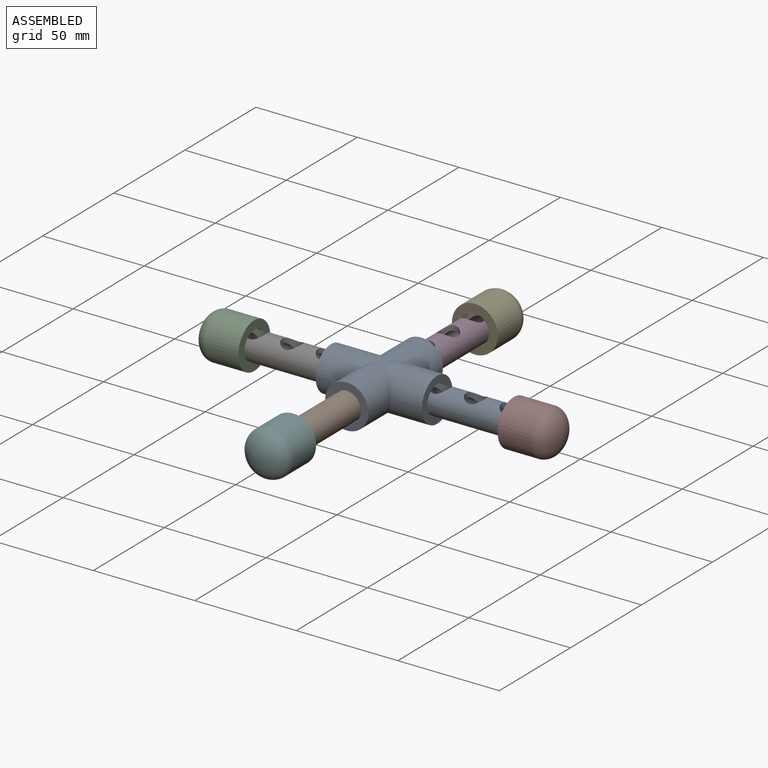
[diagram: assembled view]
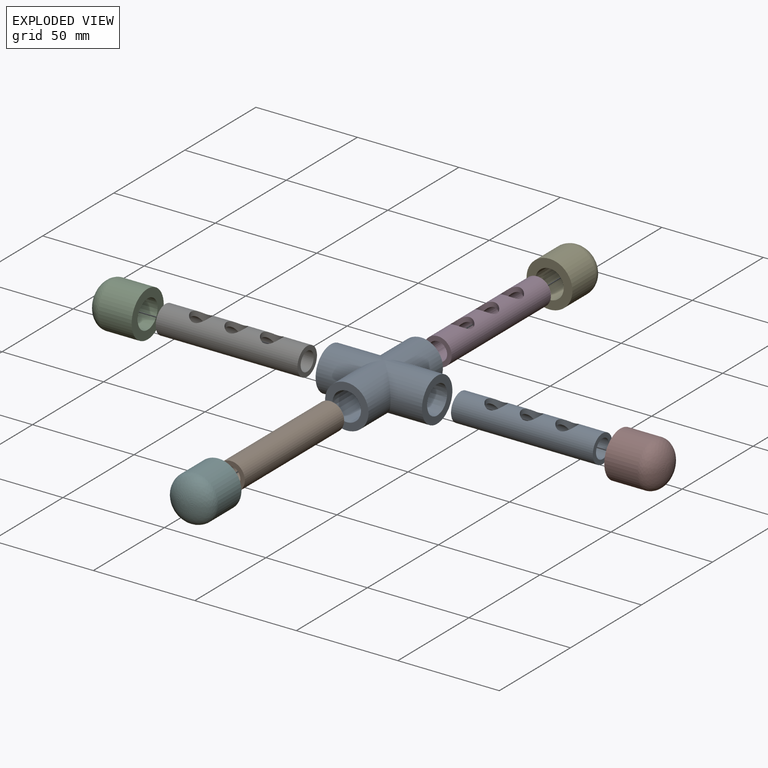
[diagram: exploded view]
GUIDED TOUR — MATED ASSEMBLY (Onshape document 892122c029d7853bbd5c459d, AutoMate assembly 892122c029d7853bbd5c459d_22f5e2d6d3beb525846c4b32_961544b801628863d71b3b25_default)

This assembly has 9 components, labeled P0..P8 below (a component is one placed occurrence of a part; the same part can appear more than once), held together by 14 mates. A mate is a constraint between two components; its type names the relative motion it leaves free:
  PLANAR — leaves sliding in the plane through the listed point (normal = the listed direction) and rotation about that normal free,
  SLIDER — leaves translation along the listed axis free.
Axis/direction vectors are unit vectors and 'through' points are millimeter coordinates, both in the assembly's world frame.

MATES
  1. SLIDER "Slider 2": P7 <-> P0, axis (-1.000, 0.000, 0.000) through (-15.50, -13.28, 13.67) mm
  2. SLIDER "Slider 2": P5 <-> P1, axis (0.000, 1.000, 0.000) through (-87.54, -85.32, 13.67) mm
  3. PLANAR "Planar 3": P8 <-> P0, direction (1.000, 0.000, 0.000) through (-77.22, -13.28, 13.67) mm
  4. SLIDER "Slider 2": P4 <-> P3, axis (0.000, -1.000, 0.000) through (-87.54, 58.76, 13.67) mm
  5. SLIDER "Slider 3": P3 <-> P8, axis (0.000, -1.000, 0.000) through (-87.54, 31.97, 13.67) mm
  6. PLANAR "Planar 7": P0 <-> P7, direction (1.000, 0.000, 0.000) through (-7.37, -13.28, 13.67) mm
  7. PLANAR "Planar 5": P8 <-> P3, direction (0.000, 1.000, 0.000) through (-87.54, -2.96, 13.67) mm
  8. PLANAR "Planar 2": P3 <-> P4, direction (0.000, 1.000, 0.000) through (-87.54, 66.89, 13.67) mm
  9. SLIDER "Slider 1": P1 <-> P8, axis (0.000, 1.000, 0.000) through (-87.54, -58.52, 13.67) mm
  10. PLANAR "Planar 2": P1 <-> P5, direction (0.000, -1.000, 0.000) through (-87.54, -93.45, 13.67) mm
  11. PLANAR "Planar 2": P6 <-> P2, direction (-1.000, 0.000, 0.000) through (-167.71, -13.28, 13.67) mm
  12. PLANAR "Planar 4": P8 <-> P6, direction (-1.000, 0.000, 0.000) through (-97.86, -13.28, 13.67) mm
  13. PLANAR "Planar 1": P8 <-> P1, direction (0.000, -1.000, 0.000) through (-87.54, -23.60, 13.67) mm
  14. SLIDER "Slider 2": P2 <-> P6, axis (1.000, 0.000, 0.000) through (-159.58, -13.28, 13.67) mm

ASSEMBLY ORDER
  1. P8 — the base component [order heuristic]
  2. P0 [order heuristic]
  3. P1 [order heuristic]
  4. P3 [order heuristic]
  5. P6 [order heuristic]
  6. P2 [order heuristic]
  7. P4 [order heuristic]
  8. P5 [order heuristic]
  9. P7 [order heuristic]
Order-tag legend:
  [order heuristic] — this assembly is geometrically interlocked (no collision-free removal order exists), so components are listed in mate-graph order; insertion feasibility is not verified.

Of the 9 components, 4 carry the full construction recipe — the FeatureScript program that regenerates the part's solid from scratch; the rest are supplied as boundary geometry only.
Each toured component is shown spotlighted twice — in the assembled view, then in the exploded view, where a leader line traces a displaced component back to its assembled socket (saturated green if recipe-attached, orange if geometry-only; every other component desaturated gray) — followed by its recipe or geometry summary and the mates that hold it.
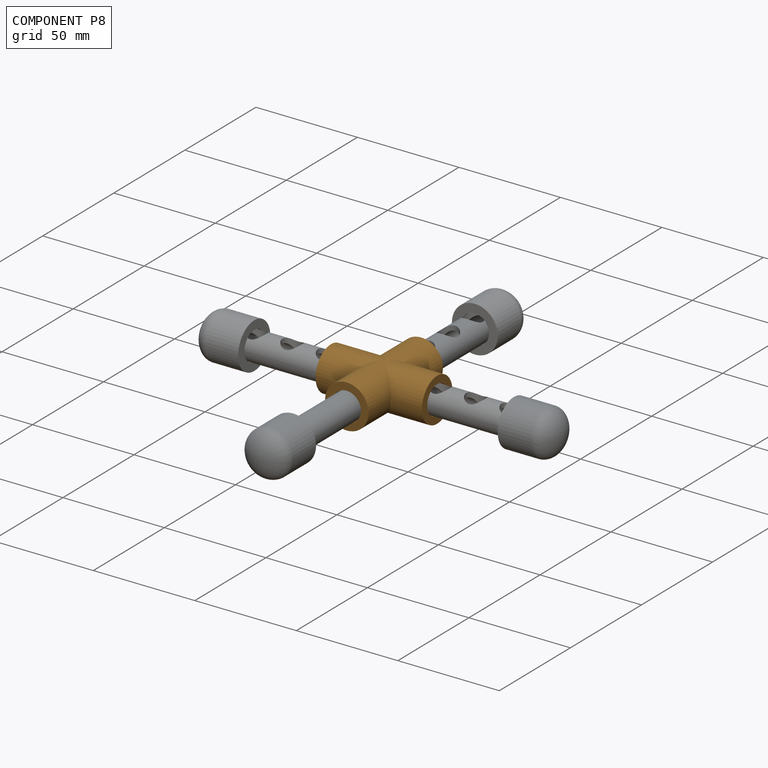
[diagram: component P8 — assembled]
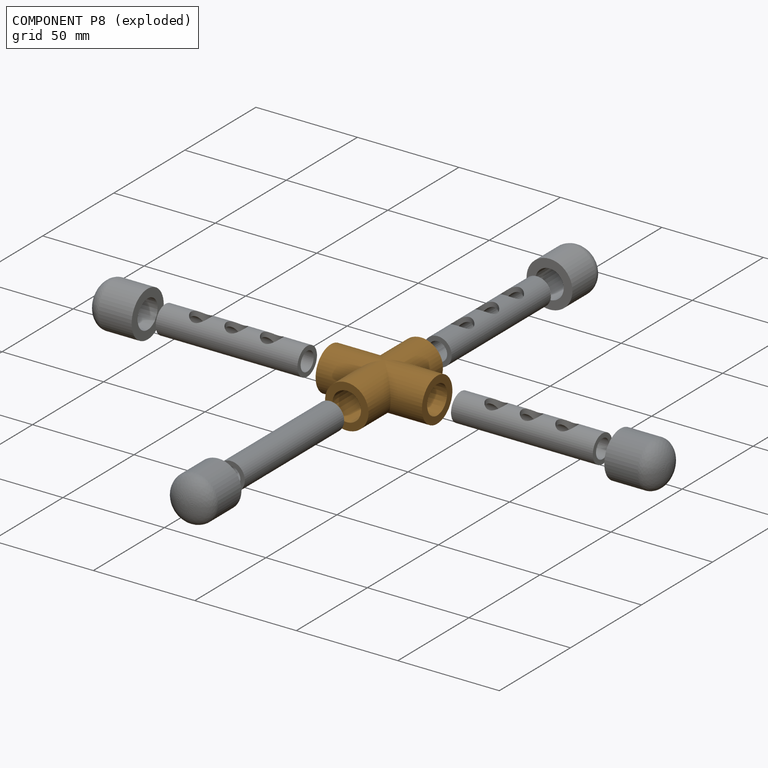
[diagram: component P8 — exploded]
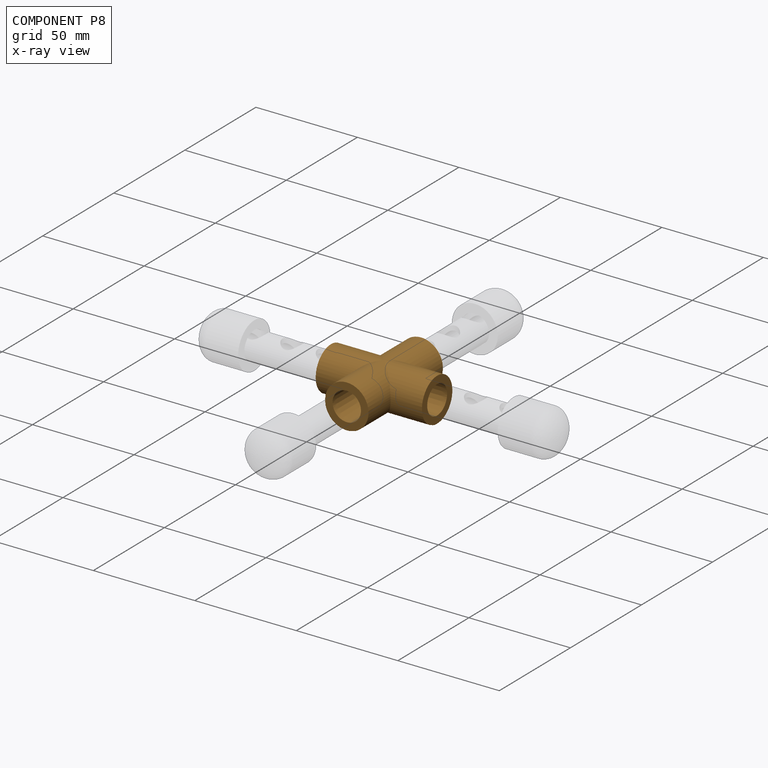
[diagram: component P8 — x-ray view]
COMPONENT P8 — geometry summary (no construction recipe available for this part):
  bounding box: 52.4 x 52.4 x 21.4 mm
  B-rep topology: 1 solid, 20 faces, 72 edges
  volume: 20104 mm^3 (34% of its bounding box)
  symmetry: 2-fold rotationally symmetric about the x axis; 2-fold rotationally symmetric about the y axis; 4-fold rotationally symmetric about the z axis; mirror-symmetric across its x mid-plane, y mid-plane, z mid-plane
Held by: PLANAR mate "Planar 3" to P0; SLIDER mate "Slider 3" to P3; PLANAR mate "Planar 5" to P3; SLIDER mate "Slider 1" to P1; PLANAR mate "Planar 4" to P6; PLANAR mate "Planar 1" to P1.
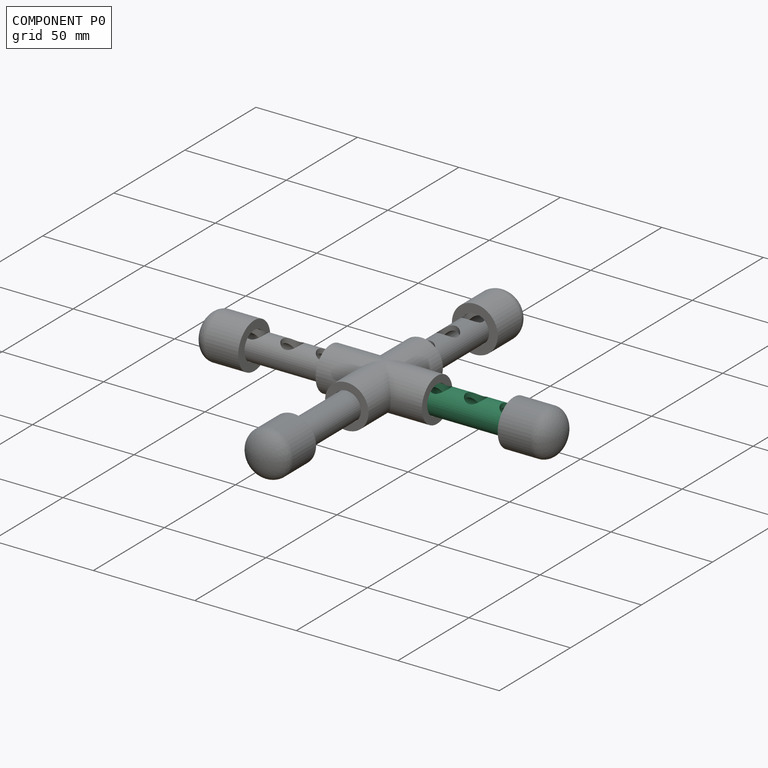
[diagram: component P0 — assembled]
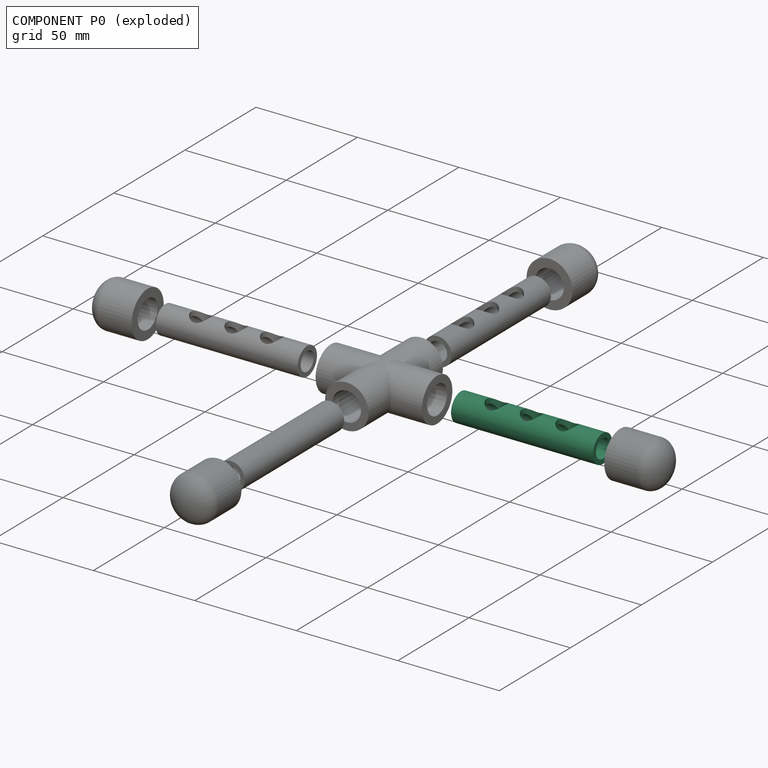
[diagram: component P0 — exploded]
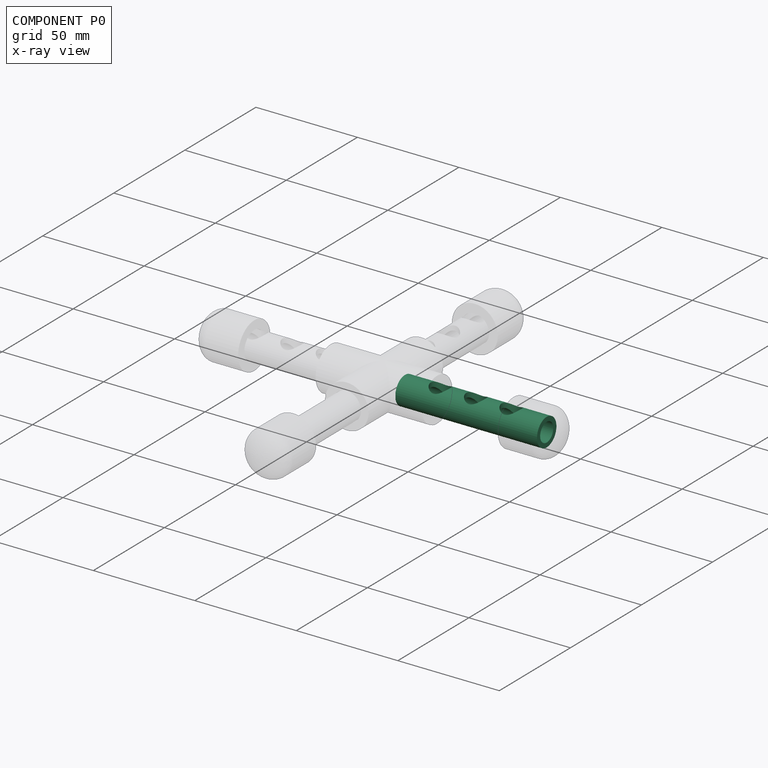
[diagram: component P0 — x-ray view]
COMPONENT P0 — recipe-attached (CADFS 00877808, mesh-verified: the recipe's output STEP matches this component's geometry to below the mesh-comparison resolution (tessellation chordal tolerance ~0.109 mm)).
Held by: SLIDER mate "Slider 2" to P7; PLANAR mate "Planar 3" to P8; PLANAR mate "Planar 7" to P7.
Construction recipe (FeatureScript — the CAD program that rebuilds this solid; sketch coordinates are in the units given by the * unit suffixes, e.g. mm):

FeatureScript 1511;
import(path : "onshape/std/geometry.fs", version : "1511.0");
import(path : "onshape/std/common.fs", version : "1511.0");
const mm = millimeter;
const VERTEX = EntityType.VERTEX;
const EDGE = EntityType.EDGE;
const FACE = EntityType.FACE;
const BODY = EntityType.BODY;
function v(x, y){return vector(x, y);}
function OD(order){return orderDisambiguation(order);}
function OSD(set){return originalSetDisambiguation(set);}
function TD(topology){return topologyDisambiguation(topology);}
function TDD(query){return trueDependencyDisambiguation(query);}
function sQuery(a, b, c) {return sketchEntityQuery(a, b, c);}

annotation { "Feature Type Name" : "Feature", "Feature Type Description" : "" }
export const myFeature = defineFeature(function(context is Context, id is Id, definition is map)
    precondition{}
    {
        {
            var Q0;
            Q0=qCreatedBy(makeId("Front.planeOp"),FACE);
            var sketch = newSketch(context, id + "F0", { "sketchPlane" : qUnion([Q0])});
            skCircle(sketch, "E0", {"center": v(0, 0) * mm, "radius": 6.86 * mm});
            skCircle(sketch, "E1", {"center": v(0, 0) * mm, "radius": 4.62 * mm});
            skSolve(sketch);
        }
        {
            var Q0;
            Q0=makeQuery(id+"F0.imprint","IMPRINT",FACE,{"disambiguationData":[TD([[makeQuery(id+"F0.imprint","IMPRINT",EDGE,{"derivedFrom":sQuery(id+"F0.wireOp",EDGE,"E0")}),1.0]])]});
            extrude(context, id + "F1", {"entities" : qUnion([Q0]), "depth" : 69.85 * mm, "offsetDistance" : 25.4 * mm});
        }
        {
            var Q0;
            Q0=qCreatedBy(makeId("Top.planeOp"),FACE);
            var sketch = newSketch(context, id + "F2", { "sketchPlane" : qUnion([Q0])});
            skCircle(sketch, "E2", {"center": v(0, -17.46) * mm, "radius": 4.76 * mm});
            skCircle(sketch, "E3", {"center": v(0, -34.93) * mm, "radius": 4.76 * mm});
            skCircle(sketch, "E4", {"center": v(0, -52.39) * mm, "radius": 4.76 * mm});
            skSolve(sketch);
        }
        {
            var Q0;
            Q0 = qSketchRegion(id + "F2", true);
            extrude(context, id + "F3", {"entities" : qUnion([Q0]), "operationType" : NewBodyOperationType.REMOVE, "oppositeDirection" : true, "depth" : 25.4 * mm, "offsetDistance" : 25.4 * mm});
        }
    });
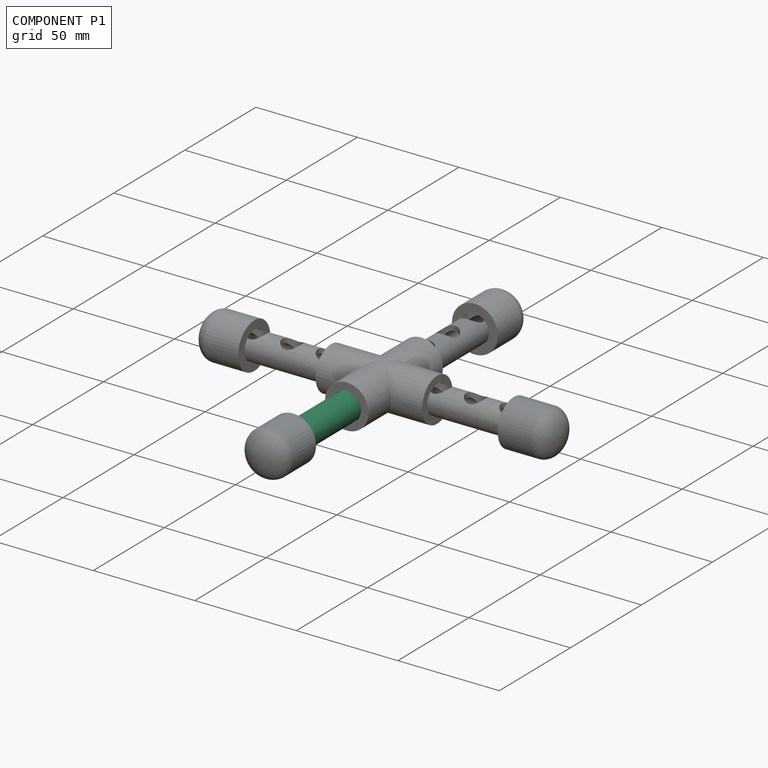
[diagram: component P1 — assembled]
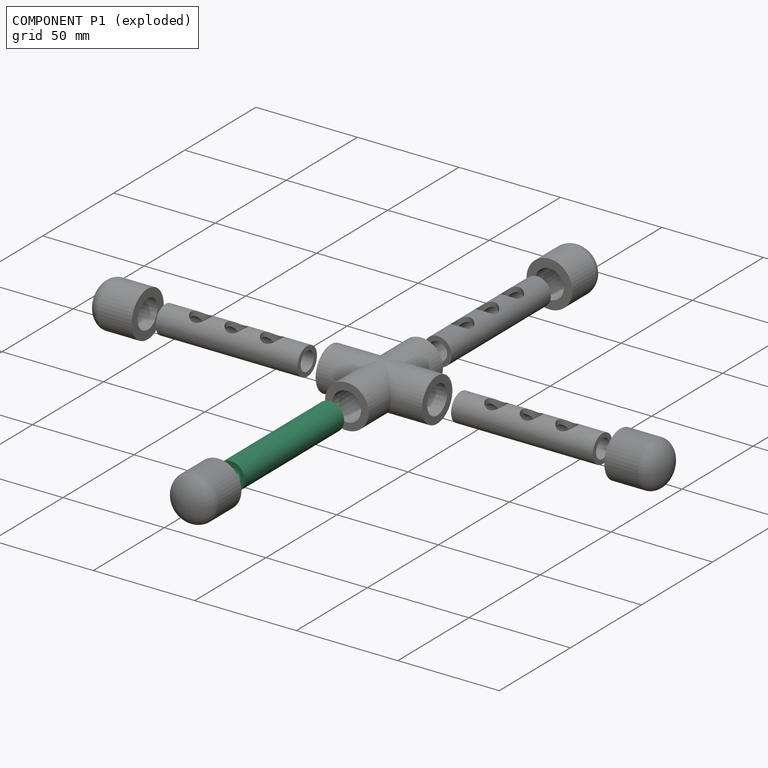
[diagram: component P1 — exploded]
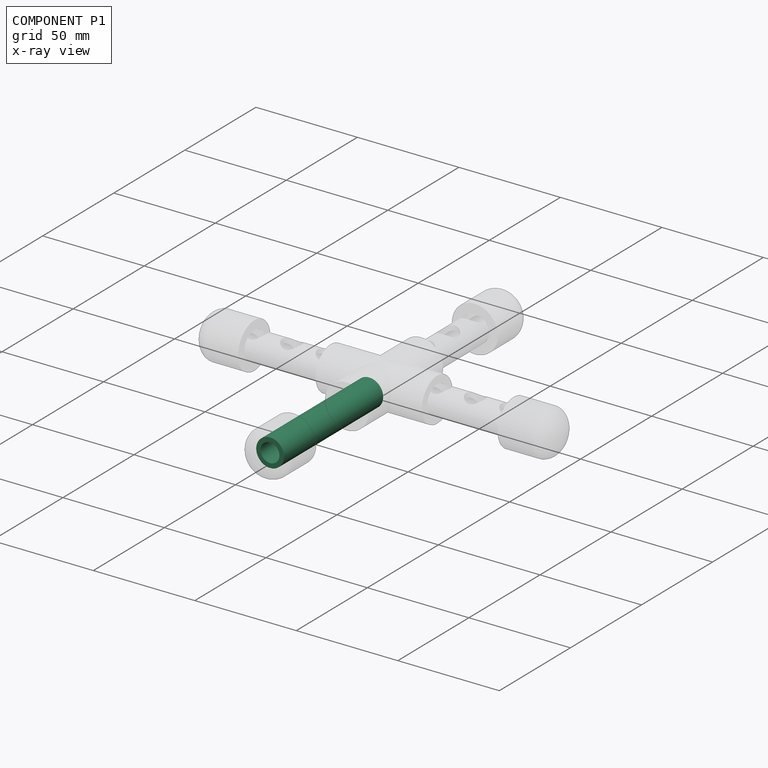
[diagram: component P1 — x-ray view]
COMPONENT P1 — same part as P0 (CADFS 00877808); its construction recipe is shown at P0.
Held by: SLIDER mate "Slider 2" to P5; SLIDER mate "Slider 1" to P8; PLANAR mate "Planar 2" to P5; PLANAR mate "Planar 1" to P8.
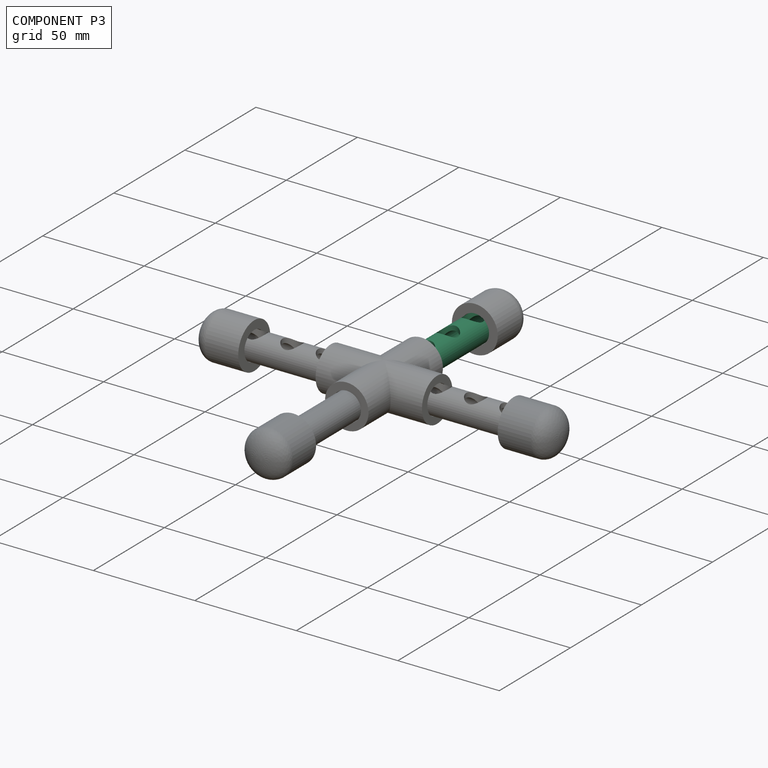
[diagram: component P3 — assembled]
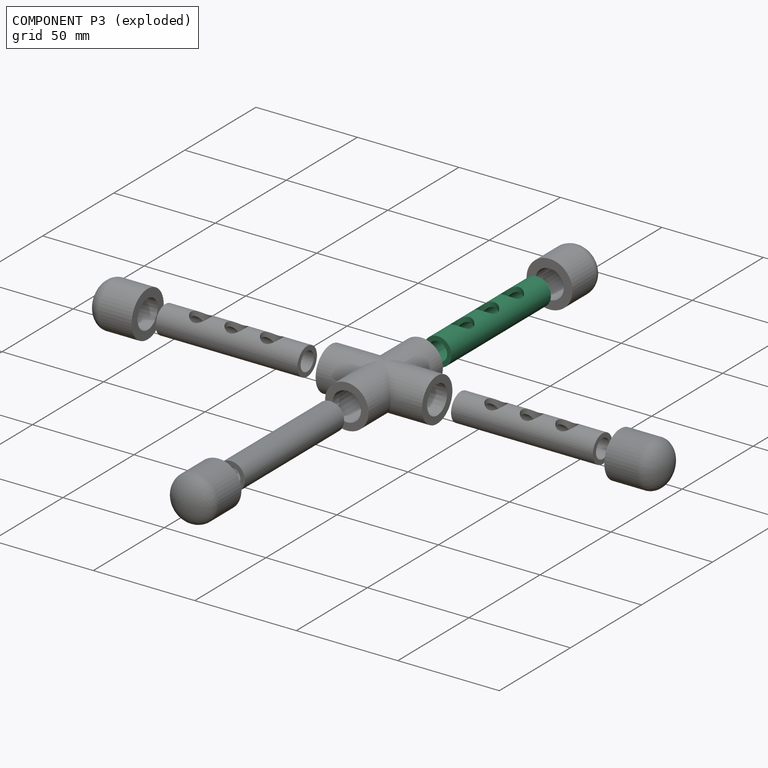
[diagram: component P3 — exploded]
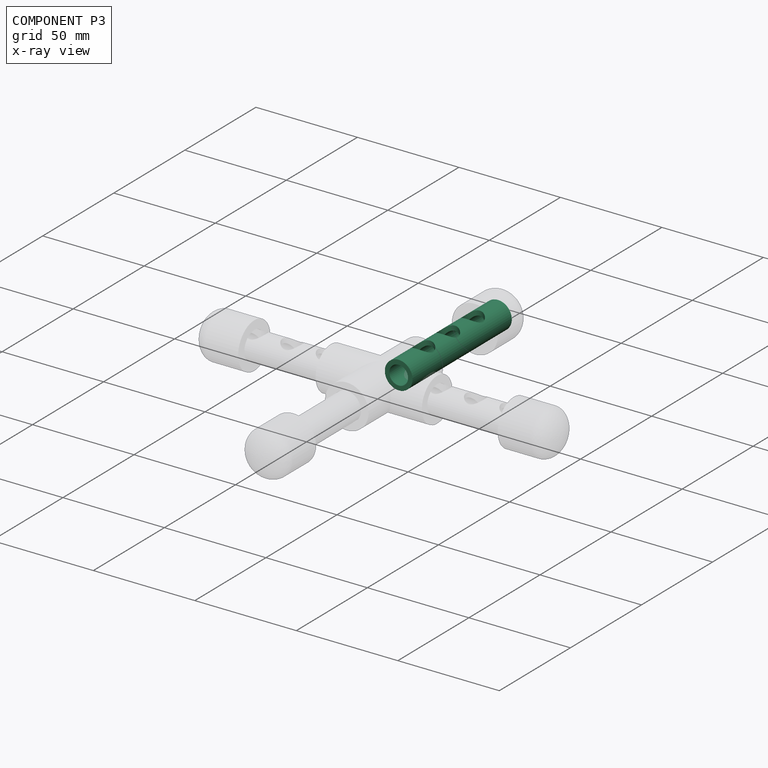
[diagram: component P3 — x-ray view]
COMPONENT P3 — same part as P0 (CADFS 00877808); its construction recipe is shown at P0.
Held by: SLIDER mate "Slider 2" to P4; SLIDER mate "Slider 3" to P8; PLANAR mate "Planar 5" to P8; PLANAR mate "Planar 2" to P4.
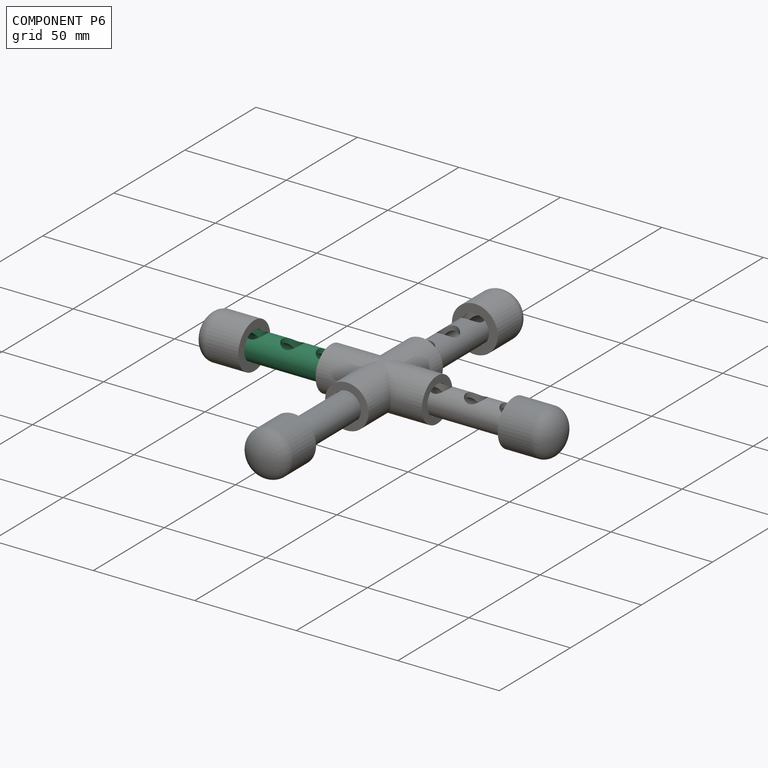
[diagram: component P6 — assembled]
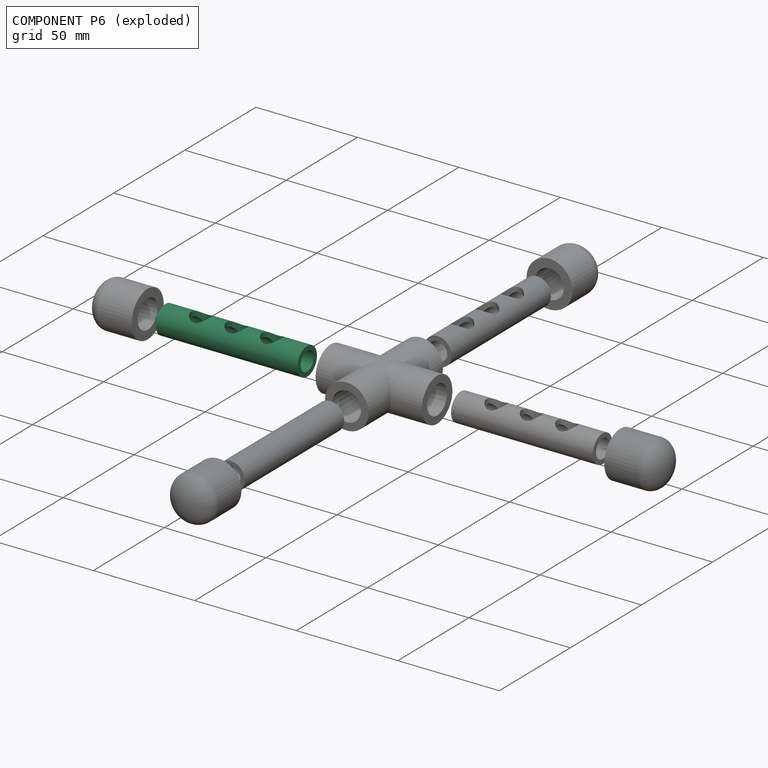
[diagram: component P6 — exploded]
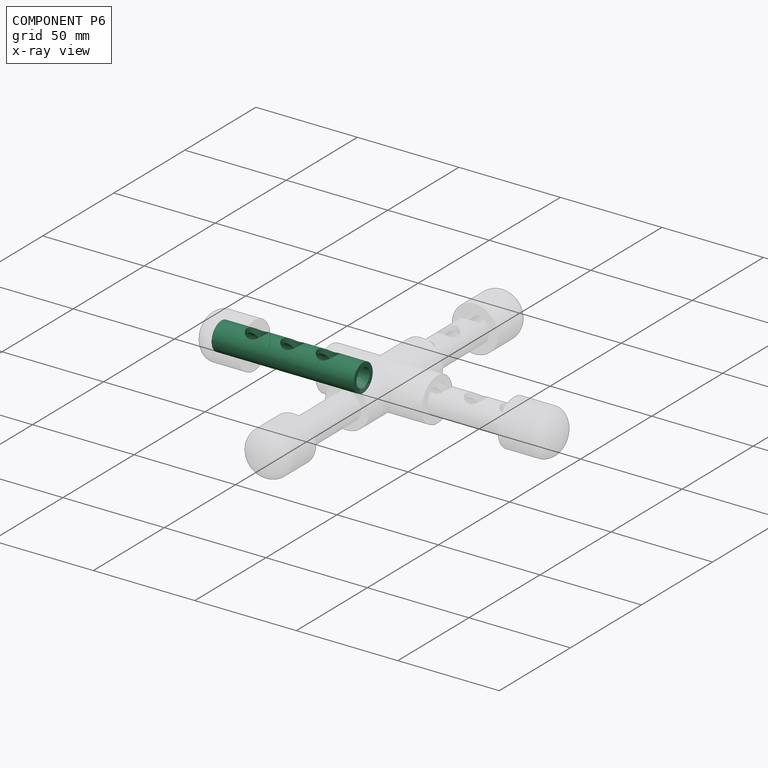
[diagram: component P6 — x-ray view]
COMPONENT P6 — same part as P0 (CADFS 00877808); its construction recipe is shown at P0.
Held by: PLANAR mate "Planar 2" to P2; PLANAR mate "Planar 4" to P8; SLIDER mate "Slider 2" to P2.
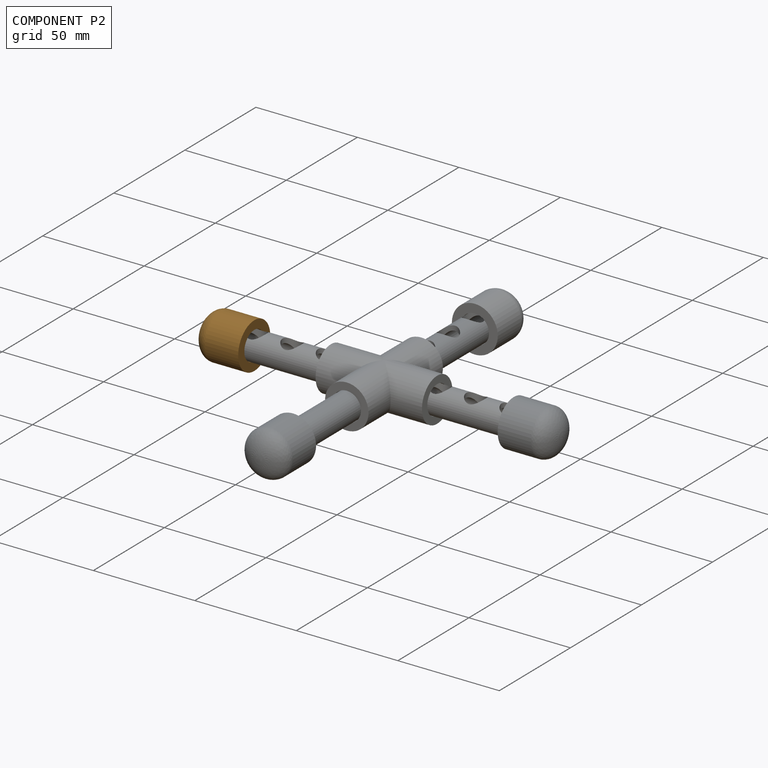
[diagram: component P2 — assembled]
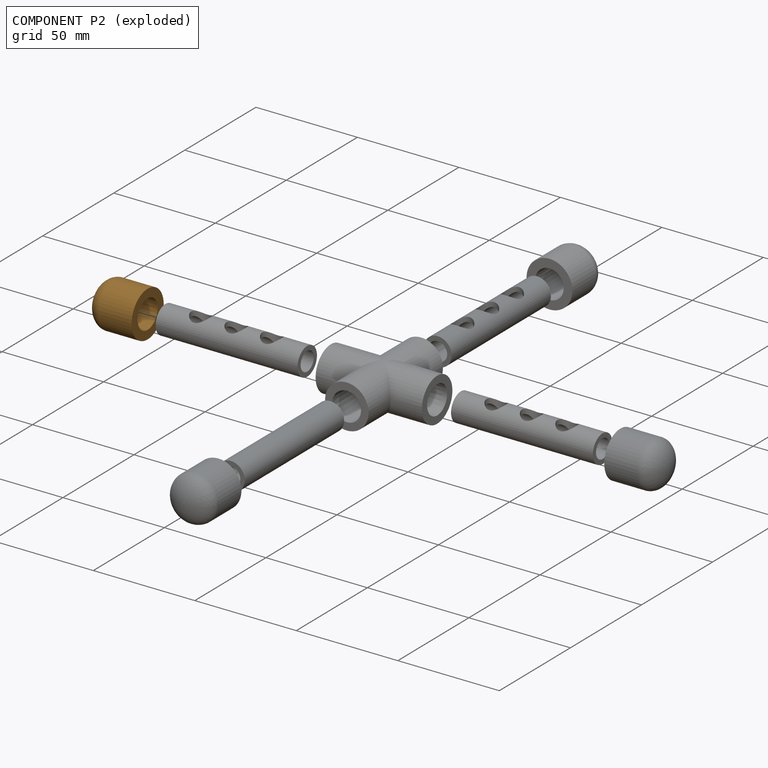
[diagram: component P2 — exploded]
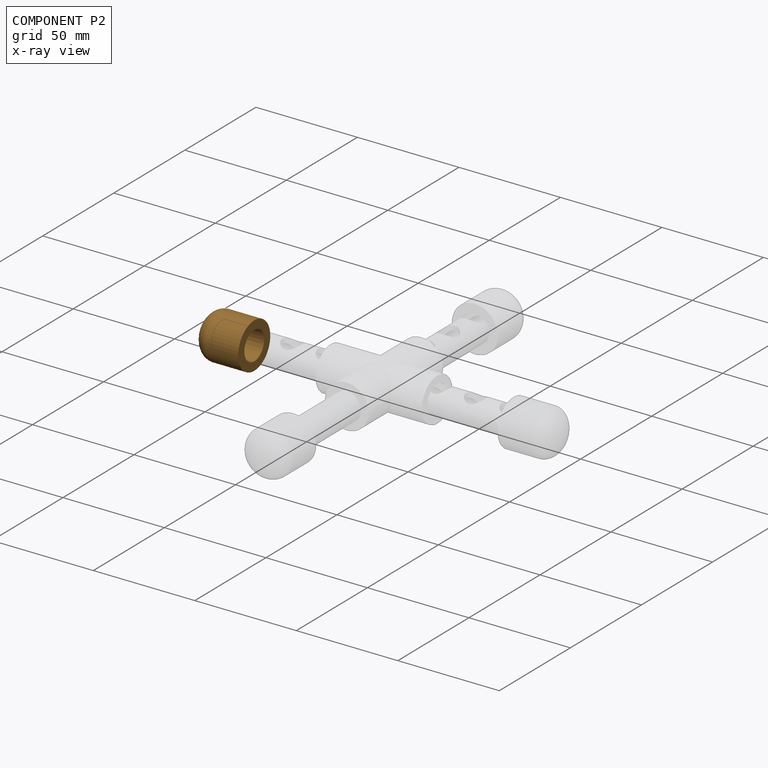
[diagram: component P2 — x-ray view]
COMPONENT P2 — geometry summary (no construction recipe available for this part):
  bounding box: 24.1 x 22.6 x 22.6 mm
  B-rep topology: 1 solid, 5 faces, 20 edges
  volume: 5866 mm^3 (48% of its bounding box)
  symmetry: revolution-symmetric about the x axis through its bounding-box center; mirror-symmetric across its y mid-plane, z mid-plane
Held by: PLANAR mate "Planar 2" to P6; SLIDER mate "Slider 2" to P6.
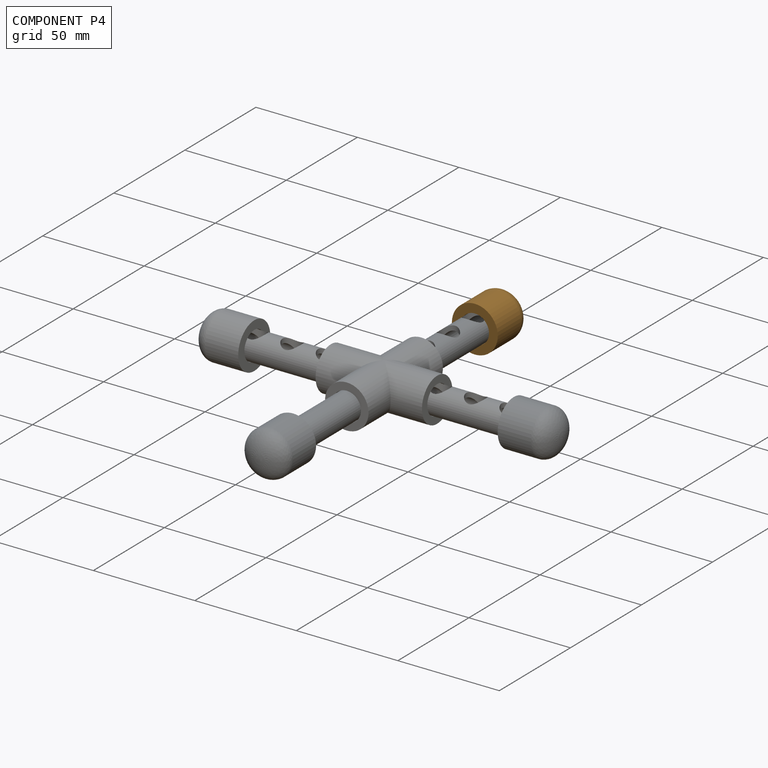
[diagram: component P4 — assembled]
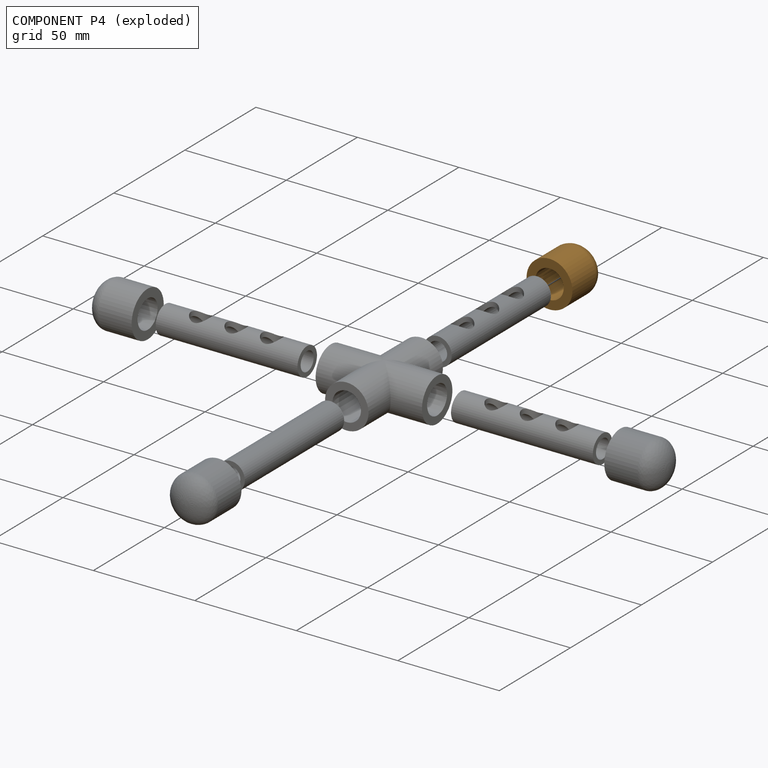
[diagram: component P4 — exploded]
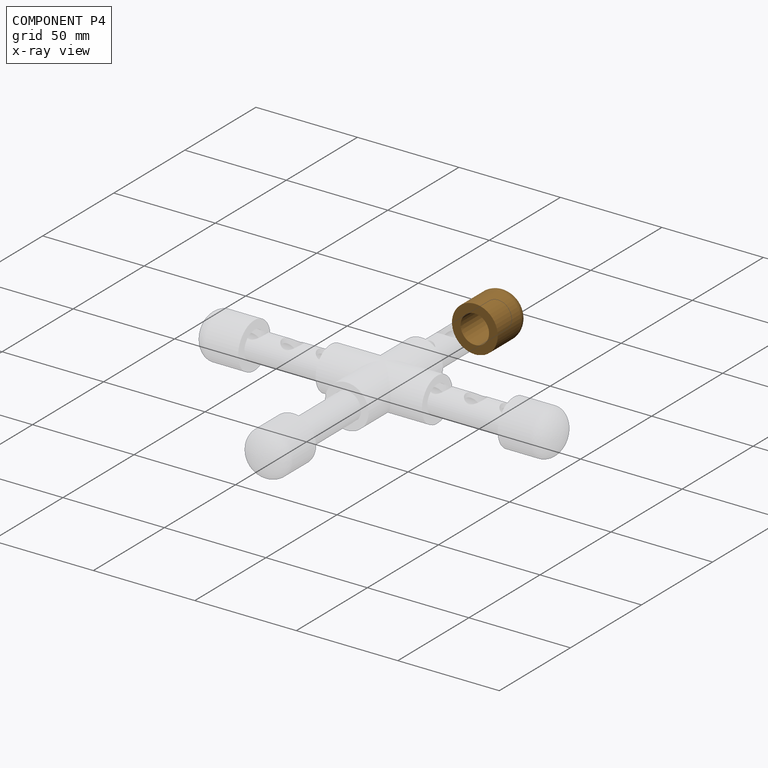
[diagram: component P4 — x-ray view]
COMPONENT P4 — geometry summary (no construction recipe available for this part):
  bounding box: 24.1 x 22.6 x 22.6 mm
  B-rep topology: 1 solid, 5 faces, 20 edges
  volume: 5866 mm^3 (48% of its bounding box)
  symmetry: revolution-symmetric about the x axis through its bounding-box center; mirror-symmetric across its y mid-plane, z mid-plane
Held by: SLIDER mate "Slider 2" to P3; PLANAR mate "Planar 2" to P3.
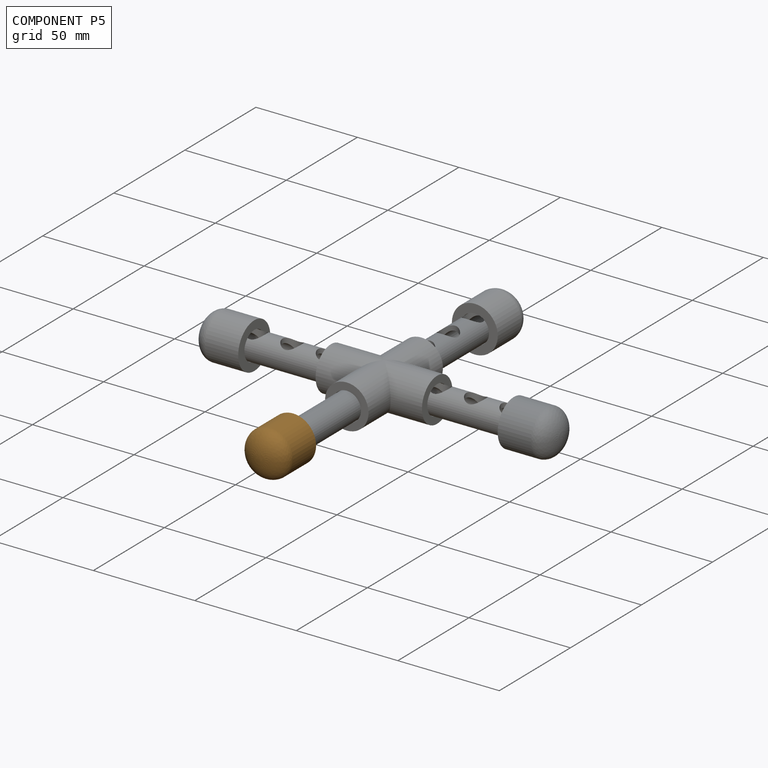
[diagram: component P5 — assembled]
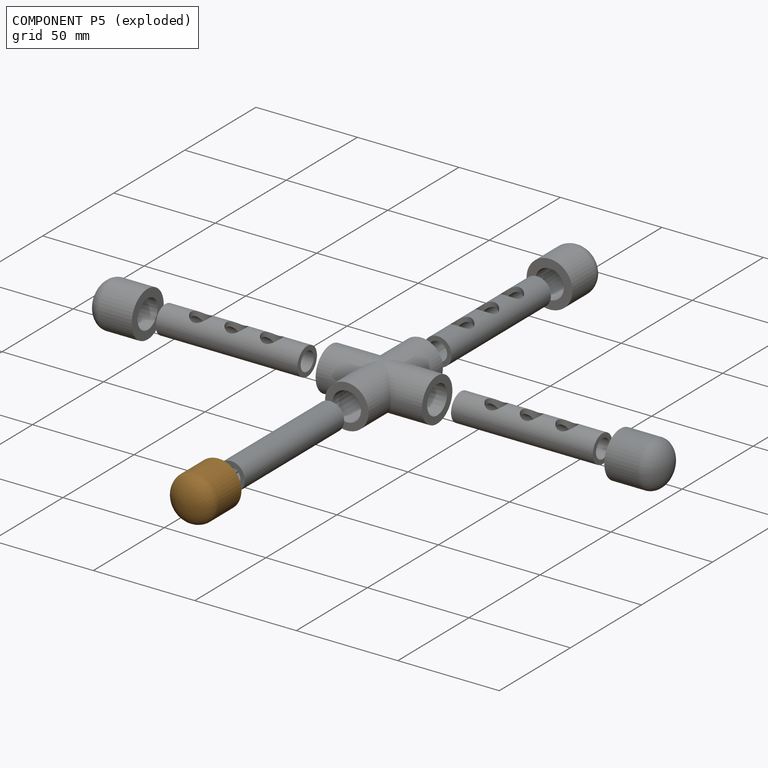
[diagram: component P5 — exploded]
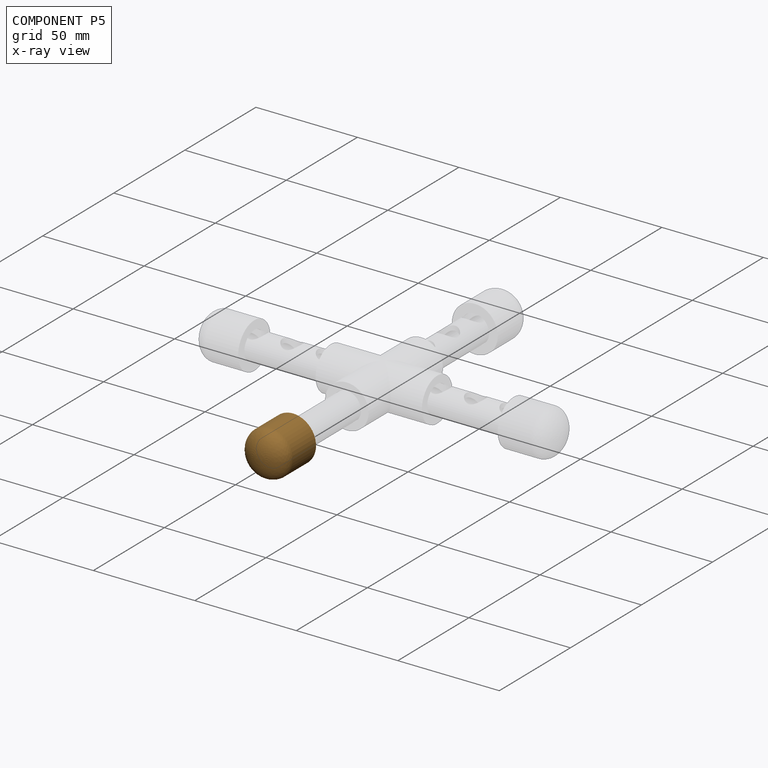
[diagram: component P5 — x-ray view]
COMPONENT P5 — geometry summary (no construction recipe available for this part):
  bounding box: 24.1 x 22.6 x 22.6 mm
  B-rep topology: 1 solid, 5 faces, 20 edges
  volume: 5866 mm^3 (48% of its bounding box)
  symmetry: revolution-symmetric about the x axis through its bounding-box center; mirror-symmetric across its y mid-plane, z mid-plane
Held by: SLIDER mate "Slider 2" to P1; PLANAR mate "Planar 2" to P1.
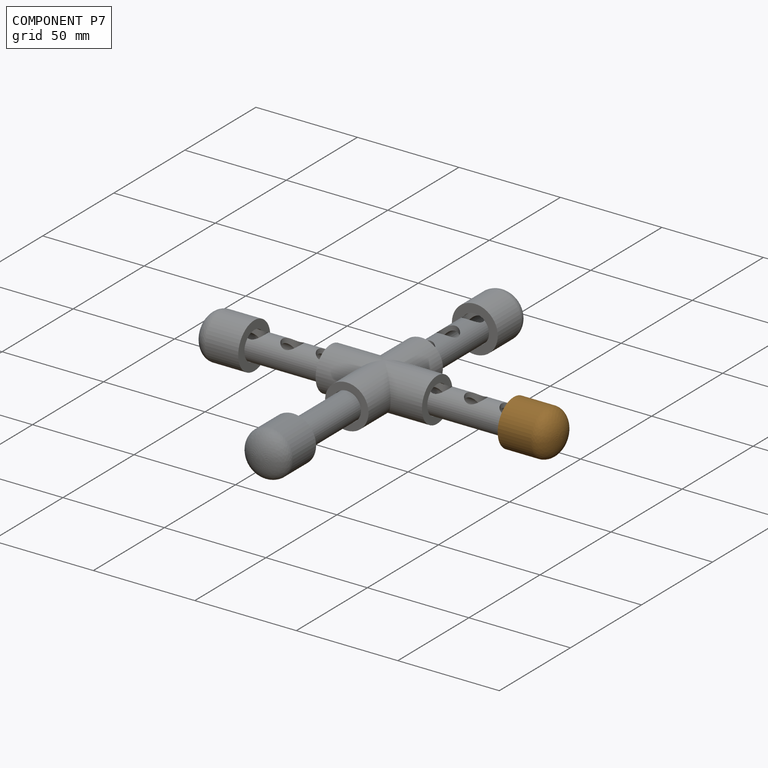
[diagram: component P7 — assembled]
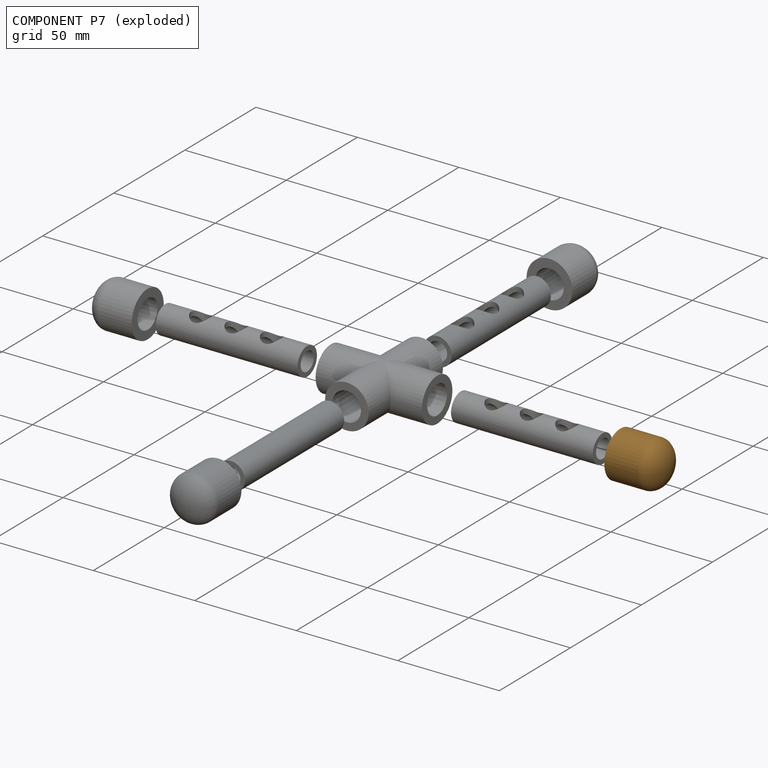
[diagram: component P7 — exploded]
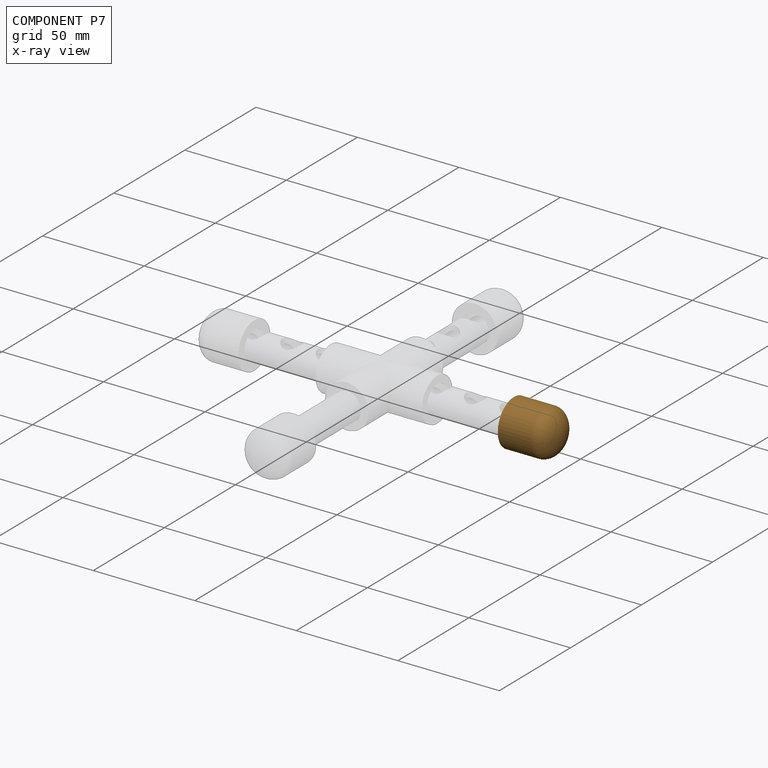
[diagram: component P7 — x-ray view]
COMPONENT P7 — geometry summary (no construction recipe available for this part):
  bounding box: 24.1 x 22.6 x 22.6 mm
  B-rep topology: 1 solid, 5 faces, 20 edges
  volume: 5866 mm^3 (48% of its bounding box)
  symmetry: revolution-symmetric about the x axis through its bounding-box center; mirror-symmetric across its y mid-plane, z mid-plane
Held by: SLIDER mate "Slider 2" to P0; PLANAR mate "Planar 7" to P0.
PROVENANCE & LICENSES
Assembly (occurrences, transforms, mates, per-part STEP geometry): AutoMate dataset, Zenodo record 7776208, CC0.
Construction recipes: CADFS (HuggingFace VladPyatov/CADFS, CC-BY-4.0, layered over the ABC dataset), FeatureScript reconstruction programs keyed by ABC model id.
Join: ABC meta listings map ABC model id -> Onshape documentId; within a shared document, parts are matched by geometric signature (bounding-box dims + volume at 0.1% relative tolerance, exact B-rep face/solid counts).
Verification: 4 of this assembly's 9 components carry a recipe attachment, and every attachment is mesh-verified: the CADFS STEP and the AutoMate member STEP were compared as meshes in their shared local frame (symmetric sampled-point-to-mesh distance); worst across the 4 attachments: below the mesh-comparison resolution (tessellation chordal tolerance ~0.109 mm) on a 72 mm part.
Renders: orthographic iso camera (az 35 / el 25); the floor grid conveys scale (grid pitch printed in each image; no ruler). In the exploded view each component is displaced by its stored offset vector: the offsets alone carry the explosion direction (mate normal/axis signs are not orientation cues and do not encode it), and separation distances are assigned per mate-chain, not proportionally to assembly-order depth.
